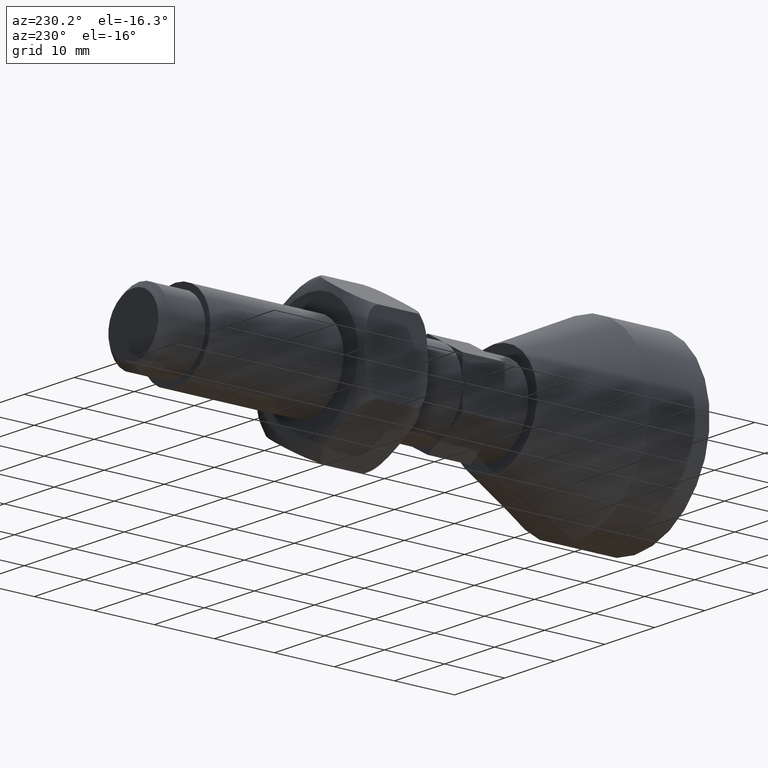
[diagram: clean part render]
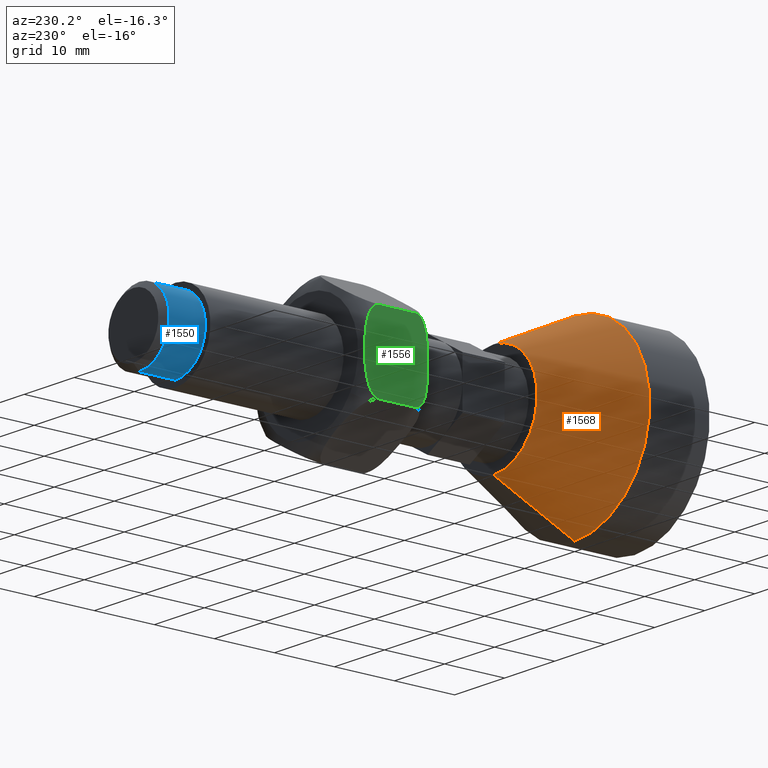
[diagram: same view with three faces highlighted in distinct colors, each labeled with its STEP entity id]
A machine part, auxiliary view with three faces highlighted in distinct colors.
Their STEP definitions:

[orange] entity #1568 — the highlighted conical surface has half-angle 25 deg.
#24 = ORIENTED_EDGE ( 'NONE', *, *, #445, .F. ) ;
#97 = LINE ( 'NONE', #1440, #99 ) ;
#99 = VECTOR ( 'NONE', #1237, 1000.000000000000000 ) ;
#138 = FACE_OUTER_BOUND ( 'NONE', #188, .T. ) ;
#139 = CONICAL_SURFACE ( 'NONE', #1044, 15.00000000000000000, 0.4363323129985826600 ) ;
#152 = CIRCLE ( 'NONE', #1055, 15.00000000000000000 ) ;
#188 = EDGE_LOOP ( 'NONE', ( #223, #222, #227, #24 ) ) ;
#222 = ORIENTED_EDGE ( 'NONE', *, *, #460, .T. ) ;
#223 = ORIENTED_EDGE ( 'NONE', *, *, #344, .F. ) ;
#227 = ORIENTED_EDGE ( 'NONE', *, *, #1793, .T. ) ;
#308 = CIRCLE ( 'NONE', #1135, 8.704846614907516800 ) ;
#344 = EDGE_CURVE ( 'NONE', #1755, #1672, #308, .T. ) ;
#445 = EDGE_CURVE ( 'NONE', #1672, #1680, #521, .T. ) ;
#460 = EDGE_CURVE ( 'NONE', #1755, #1683, #97, .T. ) ;
#521 = LINE ( 'NONE', #1254, #523 ) ;
#523 = VECTOR ( 'NONE', #1398, 1000.000000000000000 ) ;
#566 = CARTESIAN_POINT ( 'NONE',  ( -1.451503226561272900E-015, 23.50000000000000000, -8.704846614907516800 ) ) ;
#601 = CARTESIAN_POINT ( 'NONE',  ( 0.0000000000000000000, 10.00000000000000000, -15.00000000000000000 ) ) ;
#603 = CARTESIAN_POINT ( 'NONE',  ( 1.836970198721029600E-015, 10.00000000000000000, 15.00000000000000000 ) ) ;
#609 = CARTESIAN_POINT ( 'NONE',  ( 0.0000000000000000000, 23.50000000000000000, 8.704846614907516800 ) ) ;
#654 = DIRECTION ( 'NONE',  ( 0.0000000000000000000, 1.000000000000000000, 0.0000000000000000000 ) ) ;
#659 = CARTESIAN_POINT ( 'NONE',  ( 0.0000000000000000000, 10.00000000000000000, 0.0000000000000000000 ) ) ;
#674 = DIRECTION ( 'NONE',  ( 0.0000000000000000000, 0.0000000000000000000, 1.000000000000000000 ) ) ;
#865 = DIRECTION ( 'NONE',  ( -0.0000000000000000000, -1.000000000000000000, -0.0000000000000000000 ) ) ;
#942 = DIRECTION ( 'NONE',  ( 0.0000000000000000000, 0.0000000000000000000, 1.000000000000000000 ) ) ;
#958 = CARTESIAN_POINT ( 'NONE',  ( 0.0000000000000000000, 10.00000000000000000, 0.0000000000000000000 ) ) ;
#1044 = AXIS2_PLACEMENT_3D ( 'NONE', #958, #865, #942 ) ;
#1055 = AXIS2_PLACEMENT_3D ( 'NONE', #659, #654, #674 ) ;
#1135 = AXIS2_PLACEMENT_3D ( 'NONE', #1617, #1618, #1585 ) ;
#1237 = DIRECTION ( 'NONE',  ( -5.175581015019661900E-017, -0.9063077870366498300, -0.4226182617406996600 ) ) ;
#1254 = CARTESIAN_POINT ( 'NONE',  ( 0.0000000000000000000, 10.00000000000000000, 15.00000000000000000 ) ) ;
#1398 = DIRECTION ( 'NONE',  ( 0.0000000000000000000, -0.9063077870366498300, 0.4226182617406996600 ) ) ;
#1440 = CARTESIAN_POINT ( 'NONE',  ( -1.836970198721029600E-015, 10.00000000000000000, -15.00000000000000000 ) ) ;
#1568 = ADVANCED_FACE ( 'NONE', ( #138 ), #139, .T. ) ;
#1585 = DIRECTION ( 'NONE',  ( 0.0000000000000000000, 0.0000000000000000000, 1.000000000000000000 ) ) ;
#1617 = CARTESIAN_POINT ( 'NONE',  ( 0.0000000000000000000, 23.50000000000000000, 0.0000000000000000000 ) ) ;
#1618 = DIRECTION ( 'NONE',  ( 0.0000000000000000000, 1.000000000000000000, 0.0000000000000000000 ) ) ;
#1672 = VERTEX_POINT ( 'NONE', #609 ) ;
#1680 = VERTEX_POINT ( 'NONE', #603 ) ;
#1683 = VERTEX_POINT ( 'NONE', #601 ) ;
#1755 = VERTEX_POINT ( 'NONE', #566 ) ;
#1793 = EDGE_CURVE ( 'NONE', #1683, #1680, #152, .T. ) ;

[blue] entity #1550 — the highlighted cylindrical surface (partial cylindrical patch) has radius 6 mm, axis along (-0, 1, -0).
#100 = CIRCLE ( 'NONE', #1097, 6.000000000000000900 ) ;
#182 = EDGE_LOOP ( 'NONE', ( #271, #274, #273, #277 ) ) ;
#264 = LINE ( 'NONE', #416, #265 ) ;
#265 = VECTOR ( 'NONE', #417, 1000.000000000000000 ) ;
#271 = ORIENTED_EDGE ( 'NONE', *, *, #374, .F. ) ;
#273 = ORIENTED_EDGE ( 'NONE', *, *, #452, .T. ) ;
#274 = ORIENTED_EDGE ( 'NONE', *, *, #461, .T. ) ;
#277 = ORIENTED_EDGE ( 'NONE', *, *, #1137, .T. ) ;
#283 = CIRCLE ( 'NONE', #1076, 6.000000000000000900 ) ;
#374 = EDGE_CURVE ( 'NONE', #1743, #1716, #264, .T. ) ;
#416 = CARTESIAN_POINT ( 'NONE',  ( 7.347880794884120700E-016, 76.49999999999998600, -6.000000000000000900 ) ) ;
#417 = DIRECTION ( 'NONE',  ( -0.0000000000000000000, 1.000000000000000000, -0.0000000000000000000 ) ) ;
#452 = EDGE_CURVE ( 'NONE', #1742, #1625, #530, .T. ) ;
#461 = EDGE_CURVE ( 'NONE', #1743, #1742, #100, .T. ) ;
#493 = FACE_OUTER_BOUND ( 'NONE', #182, .T. ) ;
#494 = CYLINDRICAL_SURFACE ( 'NONE', #1080, 6.000000000000000900 ) ;
#530 = LINE ( 'NONE', #1241, #532 ) ;
#532 = VECTOR ( 'NONE', #1426, 1000.000000000000000 ) ;
#573 = CARTESIAN_POINT ( 'NONE',  ( 7.347880794884120700E-016, 76.49999999999998600, -6.000000000000000900 ) ) ;
#574 = CARTESIAN_POINT ( 'NONE',  ( 0.0000000000000000000, 76.49999999999998600, 6.000000000000000900 ) ) ;
#583 = CARTESIAN_POINT ( 'NONE',  ( 7.347880794884120700E-016, 82.49999999999998600, -6.000000000000000900 ) ) ;
#627 = CARTESIAN_POINT ( 'NONE',  ( 0.0000000000000000000, 82.49999999999998600, 6.000000000000000900 ) ) ;
#904 = DIRECTION ( 'NONE',  ( -0.0000000000000000000, 1.000000000000000000, -0.0000000000000000000 ) ) ;
#915 = CARTESIAN_POINT ( 'NONE',  ( 0.0000000000000000000, 76.49999999999998600, 0.0000000000000000000 ) ) ;
#923 = DIRECTION ( 'NONE',  ( 0.0000000000000000000, 0.0000000000000000000, 1.000000000000000000 ) ) ;
#1076 = AXIS2_PLACEMENT_3D ( 'NONE', #1434, #1331, #1278 ) ;
#1080 = AXIS2_PLACEMENT_3D ( 'NONE', #915, #904, #923 ) ;
#1097 = AXIS2_PLACEMENT_3D ( 'NONE', #1163, #1205, #1322 ) ;
#1137 = EDGE_CURVE ( 'NONE', #1625, #1716, #283, .T. ) ;
#1163 = CARTESIAN_POINT ( 'NONE',  ( 0.0000000000000000000, 76.49999999999998600, 0.0000000000000000000 ) ) ;
#1205 = DIRECTION ( 'NONE',  ( 0.0000000000000000000, 1.000000000000000000, 0.0000000000000000000 ) ) ;
#1241 = CARTESIAN_POINT ( 'NONE',  ( 0.0000000000000000000, 76.49999999999998600, 6.000000000000000900 ) ) ;
#1278 = DIRECTION ( 'NONE',  ( 0.0000000000000000000, 0.0000000000000000000, 1.000000000000000000 ) ) ;
#1322 = DIRECTION ( 'NONE',  ( 0.0000000000000000000, 0.0000000000000000000, 1.000000000000000000 ) ) ;
#1331 = DIRECTION ( 'NONE',  ( 0.0000000000000000000, -1.000000000000000000, 0.0000000000000000000 ) ) ;
#1426 = DIRECTION ( 'NONE',  ( -0.0000000000000000000, 1.000000000000000000, -0.0000000000000000000 ) ) ;
#1434 = CARTESIAN_POINT ( 'NONE',  ( 0.0000000000000000000, 82.49999999999998600, 0.0000000000000000000 ) ) ;
#1550 = ADVANCED_FACE ( 'NONE', ( #493 ), #494, .T. ) ;
#1625 = VERTEX_POINT ( 'NONE', #627 ) ;
#1716 = VERTEX_POINT ( 'NONE', #583 ) ;
#1742 = VERTEX_POINT ( 'NONE', #574 ) ;
#1743 = VERTEX_POINT ( 'NONE', #573 ) ;

[green] entity #1556 — the highlighted planar face has unit normal (1, -0, 0).
#36 = EDGE_LOOP ( 'NONE', ( #1762, #1763, #1765, #1766 ) ) ;
#309 = VECTOR ( 'NONE', #1605, 1000.000000000000000 ) ;
#311 = LINE ( 'NONE', #1615, #309 ) ;
#347 = EDGE_CURVE ( 'NONE', #1579, #1723, #311, .T. ) ;
#409 = CARTESIAN_POINT ( 'NONE',  ( -10.89999999999999300, 54.30000000000000400, -6.293117934166927400 ) ) ;
#430 = DIRECTION ( 'NONE',  ( -0.0000000000000000000, -1.000000000000000000, -0.0000000000000000000 ) ) ;
#438 = EDGE_CURVE ( 'NONE', #1667, #1725, #511, .T. ) ;
#468 = EDGE_CURVE ( 'NONE', #1725, #1723, #1498, .T. ) ;
#481 = EDGE_CURVE ( 'NONE', #1579, #1667, #1499, .T. ) ;
#501 = FACE_OUTER_BOUND ( 'NONE', #36, .T. ) ;
#511 = LINE ( 'NONE', #409, #513 ) ;
#513 = VECTOR ( 'NONE', #430, 1000.000000000000000 ) ;
#578 = CARTESIAN_POINT ( 'NONE',  ( -10.89999999999999300, 51.73568832900860300, 6.293117934166930100 ) ) ;
#580 = CARTESIAN_POINT ( 'NONE',  ( -10.89999999999999300, 45.39877535013742000, -6.293117934166926600 ) ) ;
#581 = CARTESIAN_POINT ( 'NONE',  ( -10.89999999999999500, 45.39877535013743400, 6.293117934166928300 ) ) ;
#613 = CARTESIAN_POINT ( 'NONE',  ( -10.89999999999999300, 51.73568832900861000, -6.293117934166927400 ) ) ;
#882 = CARTESIAN_POINT ( 'NONE',  ( -10.89999999999999300, 54.30000000000000400, -6.293117934166927400 ) ) ;
#931 = DIRECTION ( 'NONE',  ( 1.000000000000000000, -0.0000000000000000000, 1.378270274070787000E-016 ) ) ;
#934 = DIRECTION ( 'NONE',  ( 1.378270274070787000E-016, 0.0000000000000000000, -1.000000000000000000 ) ) ;
#940 = PLANE ( 'NONE',  #1089 ) ;
#1089 = AXIS2_PLACEMENT_3D ( 'NONE', #882, #931, #934 ) ;
#1167 = CARTESIAN_POINT ( 'NONE',  ( -10.89999999999984400, 44.05956736309645500, -4.860066662910376100 ) ) ;
#1178 = CARTESIAN_POINT ( 'NONE',  ( -10.89999999999999500, 52.96046543781081100, -5.469646416091129600 ) ) ;
#1191 = CARTESIAN_POINT ( 'NONE',  ( -10.89999999999999900, 43.53910815642417000, -0.5757613001763284300 ) ) ;
#1192 = CARTESIAN_POINT ( 'NONE',  ( -10.89999999999995400, 44.30887889386541200, 5.394679708581996600 ) ) ;
#1196 = CARTESIAN_POINT ( 'NONE',  ( -10.89999999999999500, 44.45992942767093600, 5.643515949795929700 ) ) ;
#1197 = CARTESIAN_POINT ( 'NONE',  ( -10.89999999999999100, 52.02787707757454400, 6.219645607474721100 ) ) ;
#1198 = CARTESIAN_POINT ( 'NONE',  ( -10.89999999999989600, 52.30817226795061700, -6.098005810488907700 ) ) ;
#1200 = CARTESIAN_POINT ( 'NONE',  ( -10.89999999999999100, 53.27105847725720600, 4.962233557274080600 ) ) ;
#1206 = CARTESIAN_POINT ( 'NONE',  ( -10.89999999999999500, 43.59505070702550700, -2.309727709077218400 ) ) ;
#1208 = CARTESIAN_POINT ( 'NONE',  ( -10.89999999999999500, 52.29825098169197900, 6.085754230003811200 ) ) ;
#1213 = CARTESIAN_POINT ( 'NONE',  ( -10.89999999999999300, 53.03707655625088800, 5.344314267286080200 ) ) ;
#1215 = CARTESIAN_POINT ( 'NONE',  ( -10.89999999999999300, 51.73568832900860300, 6.293117934166930100 ) ) ;
#1216 = CARTESIAN_POINT ( 'NONE',  ( -10.89999999999999500, 54.07487798822956600, 0.5916081344273296200 ) ) ;
#1220 = CARTESIAN_POINT ( 'NONE',  ( -10.89999999999999900, 54.05555253895205000, -1.187685457905109300 ) ) ;
#1222 = CARTESIAN_POINT ( 'NONE',  ( -10.89999999999999700, 53.96023368446429900, -2.373995322937410900 ) ) ;
#1225 = CARTESIAN_POINT ( 'NONE',  ( -10.89999999999999700, 43.76666916456537100, 3.750430167174394900 ) ) ;
#1232 = CARTESIAN_POINT ( 'NONE',  ( -10.89999999999999300, 44.75774400313406400, -5.959140666537466700 ) ) ;
#1233 = CARTESIAN_POINT ( 'NONE',  ( -10.89999999999999500, 43.53916832161358700, 0.5815220550487024700 ) ) ;
#1235 = CARTESIAN_POINT ( 'NONE',  ( -10.89999999999999700, 43.63634592372919500, 2.894356871128302100 ) ) ;
#1236 = CARTESIAN_POINT ( 'NONE',  ( -10.89999999999999700, 53.27121275066946300, -4.961750450842769700 ) ) ;
#1238 = CARTESIAN_POINT ( 'NONE',  ( -10.89999999999989000, 52.77052860441271800, -5.710478773100371400 ) ) ;
#1243 = CARTESIAN_POINT ( 'NONE',  ( -10.89999999999999500, 43.96729499495403800, -4.583843747405088800 ) ) ;
#1250 = CARTESIAN_POINT ( 'NONE',  ( -10.89999999999999500, 45.11878735669531400, -6.208379144065274200 ) ) ;
#1267 = CARTESIAN_POINT ( 'NONE',  ( -10.89999999999999500, 43.82198099418989300, 4.034649369511688700 ) ) ;
#1287 = CARTESIAN_POINT ( 'NONE',  ( -10.89999999999999300, 51.73568832900861000, -6.293117934166927400 ) ) ;
#1294 = CARTESIAN_POINT ( 'NONE',  ( -10.89999999999999300, 43.54671268109389400, 1.160204475781591900 ) ) ;
#1304 = CARTESIAN_POINT ( 'NONE',  ( -10.89999999999999500, 43.59546414392965400, 2.316358636683398100 ) ) ;
#1308 = CARTESIAN_POINT ( 'NONE',  ( -10.89999999999999100, 43.97080290829782000, 4.595375224611595800 ) ) ;
#1311 = CARTESIAN_POINT ( 'NONE',  ( -10.89999999999999000, 44.87127495359979400, 6.055923451932701900 ) ) ;
#1312 = CARTESIAN_POINT ( 'NONE',  ( -10.89999999999999700, 43.76567145665070100, -3.744864246158151800 ) ) ;
#1317 = CARTESIAN_POINT ( 'NONE',  ( -10.89999999999999300, 51.88589447582597800, 6.267769859978809400 ) ) ;
#1332 = CARTESIAN_POINT ( 'NONE',  ( -10.89999999999999300, 44.55742643062402700, -5.746250149430595800 ) ) ;
#1336 = CARTESIAN_POINT ( 'NONE',  ( -10.89999999999999700, 52.42447029858757200, 6.000518482641608000 ) ) ;
#1350 = CARTESIAN_POINT ( 'NONE',  ( -10.89999999999998400, 53.68304286966402100, -3.844729204123867200 ) ) ;
#1356 = CARTESIAN_POINT ( 'NONE',  ( -10.89999999999984200, 52.95142119064235700, 5.466819839191112300 ) ) ;
#1358 = CARTESIAN_POINT ( 'NONE',  ( -10.89999999999998600, 53.60055933553405800, -4.134416566910047700 ) ) ;
#1359 = CARTESIAN_POINT ( 'NONE',  ( -10.89999999999999900, 44.46885865072537300, -5.628724360133523100 ) ) ;
#1361 = CARTESIAN_POINT ( 'NONE',  ( -10.89999999999998600, 53.88420381985825700, -2.970489974306346400 ) ) ;
#1364 = CARTESIAN_POINT ( 'NONE',  ( -10.89999999999999500, 54.05568837466324800, 1.184670510192086500 ) ) ;
#1371 = CARTESIAN_POINT ( 'NONE',  ( -10.89999999999999700, 43.63593744472456100, -2.889670219023947200 ) ) ;
#1376 = CARTESIAN_POINT ( 'NONE',  ( -10.89999999999999300, 44.76068527475577200, 5.961815971798238000 ) ) ;
#1382 = CARTESIAN_POINT ( 'NONE',  ( -10.89999999999999500, 45.39877535013743400, 6.293117934166928300 ) ) ;
#1386 = CARTESIAN_POINT ( 'NONE',  ( -10.89999999999984600, 52.75985350438021000, 5.698995100606929000 ) ) ;
#1388 = CARTESIAN_POINT ( 'NONE',  ( -10.89999999999999500, 53.39724972461203800, 4.686048465117904600 ) ) ;
#1392 = CARTESIAN_POINT ( 'NONE',  ( -10.89999999999999500, 45.25358095176432000, -6.264814717645131200 ) ) ;
#1397 = CARTESIAN_POINT ( 'NONE',  ( -10.90000000000000000, 43.54659228465551700, -1.154140318888817100 ) ) ;
#1407 = CARTESIAN_POINT ( 'NONE',  ( -10.89999999999999700, 44.31256082225655700, -5.384461313300629800 ) ) ;
#1409 = CARTESIAN_POINT ( 'NONE',  ( -10.89999999999999500, 53.68454783707040400, 3.838917680795229000 ) ) ;
#1419 = CARTESIAN_POINT ( 'NONE',  ( -10.89999999999999700, 53.88441547315523600, 2.968094345256208700 ) ) ;
#1420 = CARTESIAN_POINT ( 'NONE',  ( -10.89999999999999500, 54.07480883351494300, -0.5945698513337799300 ) ) ;
#1428 = CARTESIAN_POINT ( 'NONE',  ( -10.89999999999984400, 44.24395177797510600, -5.256588703492875300 ) ) ;
#1430 = CARTESIAN_POINT ( 'NONE',  ( -10.89999999999999100, 44.86815773647494200, -6.053717347400548100 ) ) ;
#1432 = CARTESIAN_POINT ( 'NONE',  ( -10.89999999999999000, 45.25466499852680600, 6.265026034407910900 ) ) ;
#1438 = CARTESIAN_POINT ( 'NONE',  ( -10.89999999999998600, 45.11965232358639400, 6.208625850868037900 ) ) ;
#1442 = CARTESIAN_POINT ( 'NONE',  ( -10.89999999999999300, 45.39877535013742000, -6.293117934166926600 ) ) ;
#1445 = CARTESIAN_POINT ( 'NONE',  ( -10.89999999999999700, 53.96060296393206800, 2.370716748401534300 ) ) ;
#1451 = CARTESIAN_POINT ( 'NONE',  ( -10.89999999999998800, 53.39444774566603500, -4.692413922394286500 ) ) ;
#1461 = CARTESIAN_POINT ( 'NONE',  ( -10.89999999999999700, 43.82049763797734000, -4.027316737393284100 ) ) ;
#1471 = CARTESIAN_POINT ( 'NONE',  ( -10.89999999999999900, 52.03631624777760600, -6.242385397919640000 ) ) ;
#1472 = CARTESIAN_POINT ( 'NONE',  ( -10.89999999999999900, 53.60347243429227900, 4.125275584755332400 ) ) ;
#1474 = CARTESIAN_POINT ( 'NONE',  ( -10.89999999999999700, 52.65403792032015000, 5.808127565192430500 ) ) ;
#1484 = CARTESIAN_POINT ( 'NONE',  ( -10.89999999999995400, 44.06312953415623200, 4.869219749554295300 ) ) ;
#1498 = B_SPLINE_CURVE_WITH_KNOTS ( 'NONE', 3,
 ( #1442, #1392, #1250, #1430, #1232, #1332, #1359, #1407, #1428, #1167, #1243, #1461, #1312, #1371, #1206, #1397, #1191, #1233, #1294, #1304, #1235, #1225, #1267, #1308, #1484, #1192, #1196, #1376, #1311, #1438, #1432, #1382 ),
 .UNSPECIFIED., .F., .F.,
 ( 4, 2, 2, 2, 2, 2, 2, 2, 2, 2, 2, 2, 2, 2, 2, 4 ),
 ( 0.0000000000000000000, 0.0004365317134793581000, 0.0008730634269587162000, 0.001309595140438074400, 0.001746126853917432400, 0.002619190280876140000, 0.003492253707834847900, 0.005238380561752263600, 0.006984507415669680100, 0.008730634269587096700, 0.01047676112350451300, 0.01134982455046322200, 0.01222288797742193200, 0.01309595140438063800, 0.01353248311785999400, 0.01396901483133934500 ),
 .UNSPECIFIED. ) ;
#1499 = B_SPLINE_CURVE_WITH_KNOTS ( 'NONE', 3,
 ( #1215, #1317, #1197, #1208, #1336, #1474, #1386, #1356, #1213, #1200, #1388, #1472, #1409, #1419, #1445, #1364, #1216, #1420, #1220, #1222, #1361, #1350, #1358, #1451, #1236, #1178, #1238, #1198, #1471, #1287 ),
 .UNSPECIFIED., .F., .F.,
 ( 4, 2, 2, 2, 2, 2, 2, 2, 2, 2, 2, 2, 2, 2, 4 ),
 ( 0.0000000000000000000, 0.0004496626857026761000, 0.0008993253714053521900, 0.001348988057108028100, 0.001798650742810704400, 0.002697976114216054100, 0.003597301485621404000, 0.005395952228432100400, 0.007194602971242797600, 0.008993253714053494800, 0.01079190445686419200, 0.01169122982826954600, 0.01259055519967489800, 0.01348988057108025000, 0.01438920594248560000 ),
 .UNSPECIFIED. ) ;
#1556 = ADVANCED_FACE ( 'NONE', ( #501 ), #940, .F. ) ;
#1579 = VERTEX_POINT ( 'NONE', #578 ) ;
#1605 = DIRECTION ( 'NONE',  ( -0.0000000000000000000, -1.000000000000000000, -0.0000000000000000000 ) ) ;
#1615 = CARTESIAN_POINT ( 'NONE',  ( -10.89999999999999500, 54.30000000000000400, 6.293117934166928300 ) ) ;
#1667 = VERTEX_POINT ( 'NONE', #613 ) ;
#1723 = VERTEX_POINT ( 'NONE', #581 ) ;
#1725 = VERTEX_POINT ( 'NONE', #580 ) ;
#1762 = ORIENTED_EDGE ( 'NONE', *, *, #438, .T. ) ;
#1763 = ORIENTED_EDGE ( 'NONE', *, *, #468, .T. ) ;
#1765 = ORIENTED_EDGE ( 'NONE', *, *, #347, .F. ) ;
#1766 = ORIENTED_EDGE ( 'NONE', *, *, #481, .T. ) ;